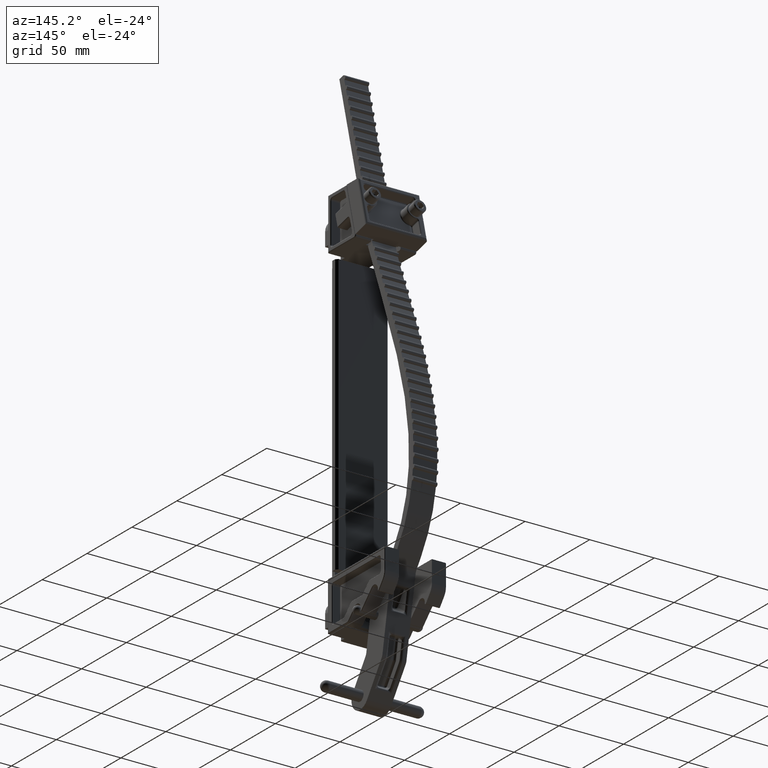
[diagram: clean part render]
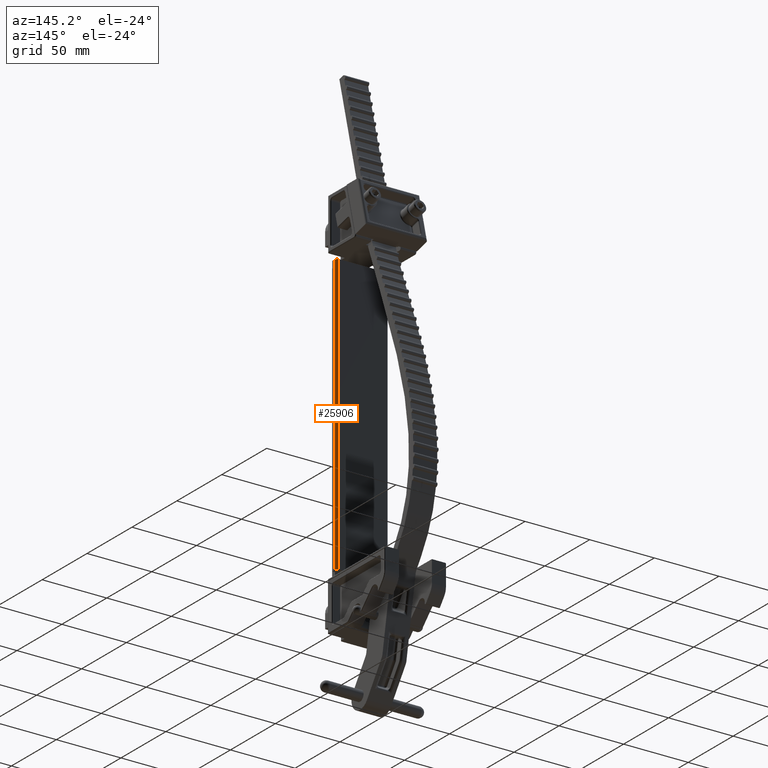
[diagram: same view with one face highlighted and labeled with its STEP entity id]
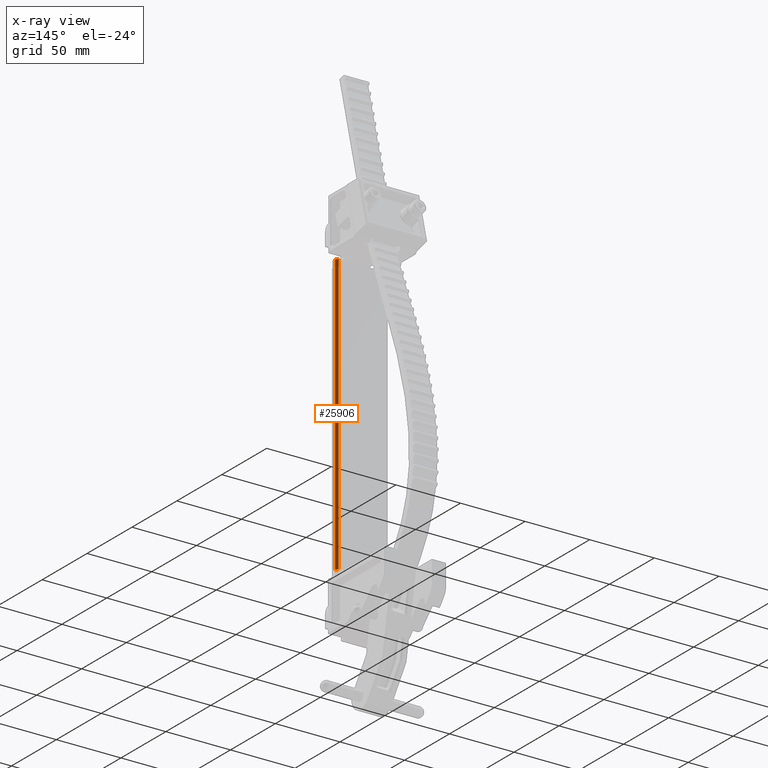
[diagram: x-ray of the same camera — body ghosted, the highlighted face saturated]
A machine part, auxiliary view. The second image highlights one B-rep face of the part: STEP entity #25906.
The next image is the same camera in x-ray: the body ghosted, the highlighted face saturated — about 0% of this face is hidden behind the body in this view.
In plain terms, the highlighted planar face has unit normal (-0.7071, -0.7071, 0).
Its self-contained STEP definition (entity closure, byte-faithful):
#1943 = LINE ( 'NONE', #5454, #28690 ) ;
#2230 = VERTEX_POINT ( 'NONE', #21631 ) ;
#3531 = EDGE_CURVE ( 'NONE', #6271, #28340, #7188, .T. ) ;
#3963 = EDGE_CURVE ( 'NONE', #28340, #2230, #31833, .T. ) ;
#5022 = CARTESIAN_POINT ( 'NONE',  ( 0.7374999999999996000, 0.0000000000000000000, 4.250000000000000000 ) ) ;
#5454 = CARTESIAN_POINT ( 'NONE',  ( 1.003249999999999500, -0.2657500000000024800, 4.250000000000000000 ) ) ;
#6271 = VERTEX_POINT ( 'NONE', #11097 ) ;
#6359 = VECTOR ( 'NONE', #15808, 39.37007874015748100 ) ;
#7188 = LINE ( 'NONE', #5022, #6359 ) ;
#10934 = ORIENTED_EDGE ( 'NONE', *, *, #3531, .F. ) ;
#11097 = CARTESIAN_POINT ( 'NONE',  ( 0.7374999999999994900, 0.0000000000000000000, 4.250000000000000000 ) ) ;
#11862 = CARTESIAN_POINT ( 'NONE',  ( 0.7374999999999996000, 0.0000000000000000000, -4.250000000000000000 ) ) ;
#12005 = CARTESIAN_POINT ( 'NONE',  ( 0.8000000000000000400, -0.06250000000000104100, 4.250000000000000000 ) ) ;
#14564 = ORIENTED_EDGE ( 'NONE', *, *, #17447, .F. ) ;
#14637 = DIRECTION ( 'NONE',  ( 0.0000000000000000000, 0.0000000000000000000, 1.000000000000000000 ) ) ;
#14767 = VERTEX_POINT ( 'NONE', #22645 ) ;
#15212 = ORIENTED_EDGE ( 'NONE', *, *, #26315, .F. ) ;
#15808 = DIRECTION ( 'NONE',  ( 0.0000000000000000000, 0.0000000000000000000, -1.000000000000000000 ) ) ;
#16039 = DIRECTION ( 'NONE',  ( 0.7071067811865441300, -0.7071067811865509000, 0.0000000000000000000 ) ) ;
#17217 = VECTOR ( 'NONE', #14637, 39.37007874015748100 ) ;
#17447 = EDGE_CURVE ( 'NONE', #2230, #14767, #31742, .T. ) ;
#17942 = DIRECTION ( 'NONE',  ( 0.7071067811865441300, -0.7071067811865509000, -0.0000000000000000000 ) ) ;
#18622 = FACE_OUTER_BOUND ( 'NONE', #28225, .T. ) ;
#20881 = DIRECTION ( 'NONE',  ( -0.7071067811865441300, 0.7071067811865509000, -0.0000000000000000000 ) ) ;
#21631 = CARTESIAN_POINT ( 'NONE',  ( 0.8000000000000000400, -0.06250000000000104100, -4.250000000000000000 ) ) ;
#22645 = CARTESIAN_POINT ( 'NONE',  ( 0.8000000000000000400, -0.06250000000000104100, 4.250000000000000000 ) ) ;
#23464 = AXIS2_PLACEMENT_3D ( 'NONE', #28910, #31495, #16039 ) ;
#25906 = ADVANCED_FACE ( 'NONE', ( #18622 ), #31174, .F. ) ;
#26315 = EDGE_CURVE ( 'NONE', #14767, #6271, #1943, .T. ) ;
#28225 = EDGE_LOOP ( 'NONE', ( #15212, #14564, #28676, #10934 ) ) ;
#28340 = VERTEX_POINT ( 'NONE', #11862 ) ;
#28676 = ORIENTED_EDGE ( 'NONE', *, *, #3963, .F. ) ;
#28690 = VECTOR ( 'NONE', #20881, 39.37007874015748100 ) ;
#28910 = CARTESIAN_POINT ( 'NONE',  ( 0.7374999999999996000, 0.0000000000000000000, 4.250000000000000000 ) ) ;
#31039 = VECTOR ( 'NONE', #17942, 39.37007874015748100 ) ;
#31174 = PLANE ( 'NONE',  #23464 ) ;
#31495 = DIRECTION ( 'NONE',  ( -0.7071067811865509000, -0.7071067811865441300, 0.0000000000000000000 ) ) ;
#31742 = LINE ( 'NONE', #12005, #17217 ) ;
#31833 = LINE ( 'NONE', #33376, #31039 ) ;
#33376 = CARTESIAN_POINT ( 'NONE',  ( 0.7374999999999996000, 0.0000000000000000000, -4.250000000000000000 ) ) ;